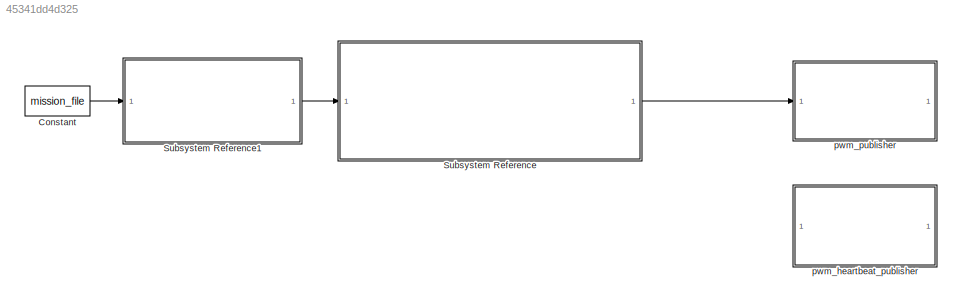
MODEL slx_45341dd4d325
KIND model
CONFIG AbsTol = abs_tol
CONFIG EnableMultiTasking = off
CONFIG FixedStep = dt_sim
CONFIG MaxStep = auto
CONFIG MinStep = auto
CONFIG RelTol = rel_tol
CONFIG SampleTimeConstraint = Unconstrained
CONFIG SolverName = FixedStepAuto
CONFIG StartTime = 0.0
CONFIG StopTime = tspan
BLOCK [Constant] Constant
  Value = mission_file
BLOCK [SubSystem] Subsystem Reference
  ReferencedSubsystem = controller
BLOCK [SubSystem] Subsystem Reference1
  ReferencedSubsystem = mission_file_parser
BLOCK [SubSystem] pwm_heartbeat_publisher
  ReferencedSubsystem = pwm_heartbeat_publisher
BLOCK [SubSystem] pwm_publisher
  ReferencedSubsystem = pwm_publisher
LINE Constant:1 -> Subsystem Reference1:1
LINE Subsystem Reference1:1 -> Subsystem Reference:1
LINE Subsystem Reference:1 -> pwm_publisher:1
